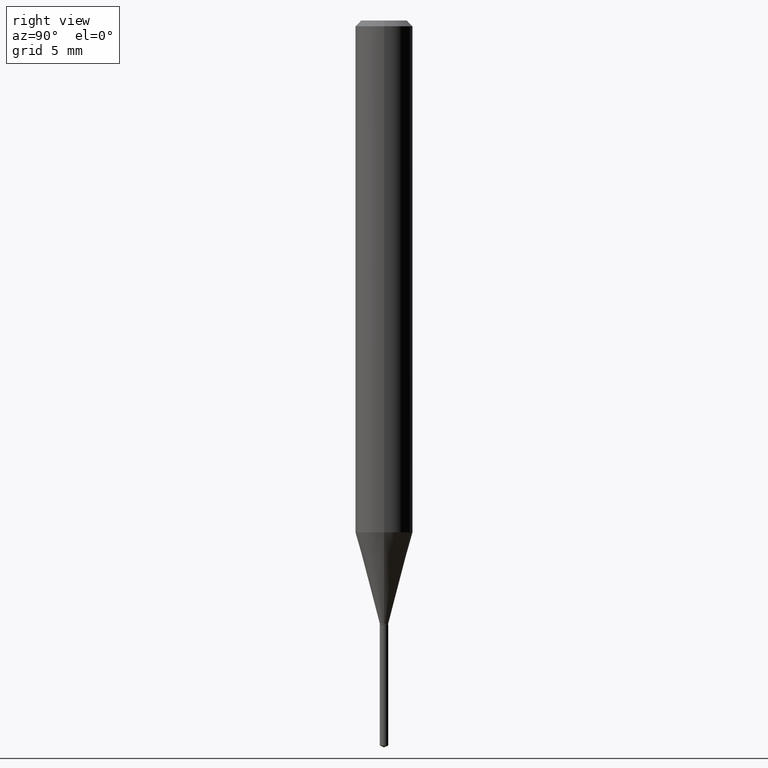
[diagram: clean part render]
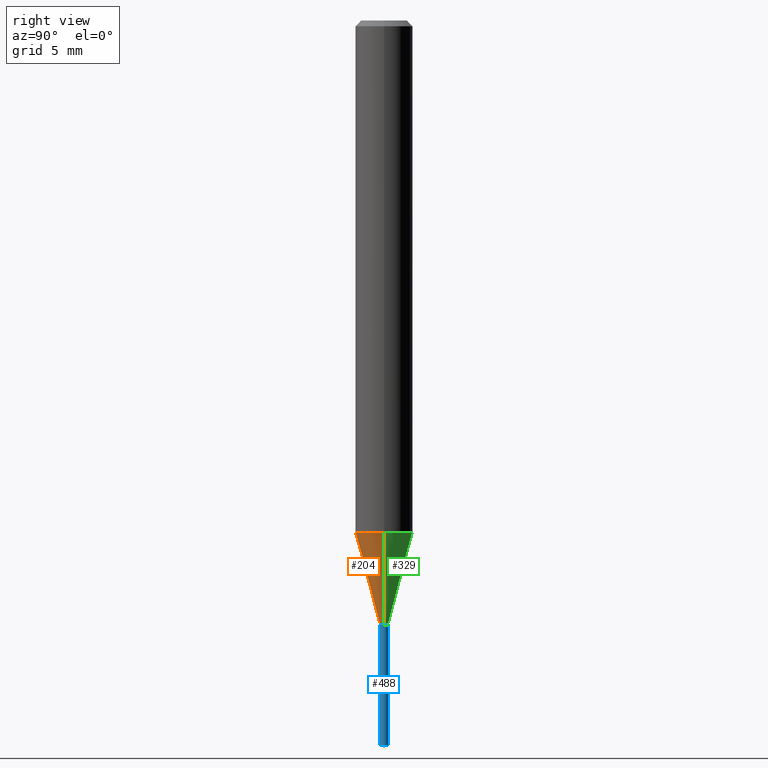
[diagram: same view with three faces highlighted in distinct colors, each labeled with its STEP entity id]
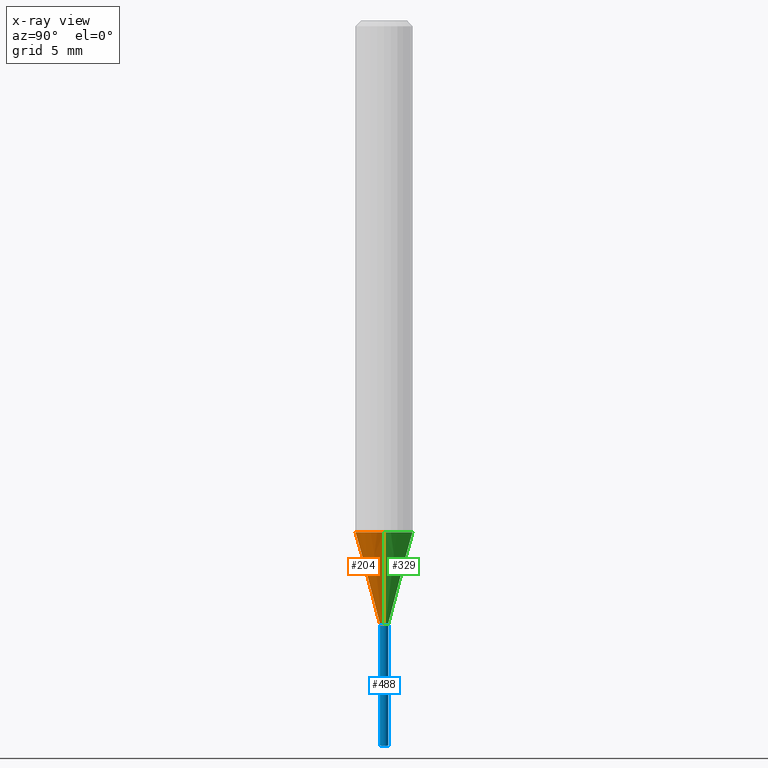
[diagram: x-ray of the same camera — body ghosted, the three highlighted faces saturated]
A machine part, right view with three faces highlighted in distinct colors.
The next image is the same camera in x-ray (body ghosted, the three faces saturated) — at least one of them is partly hidden behind the body in this view.
Their STEP definitions:

[orange] entity #204 — the highlighted conical surface has half-angle 15 deg.
#37 = DIRECTION ( 'NONE',  ( -0.2588190451025213501, 5.211531920934551042E-15, 0.9659258262890682012 ) ) ;
#38 = VERTEX_POINT ( 'NONE', #473 ) ;
#41 = EDGE_LOOP ( 'NONE', ( #141, #160, #205, #387 ) ) ;
#67 = DIRECTION ( 'NONE',  ( -2.445468806185136597E-29, 3.491481338843145583E-15, 1.000000000000000000 ) ) ;
#86 = CONICAL_SURFACE ( 'NONE', #259, 0.008649999999999999703, 0.2617993877991500740 ) ;
#106 = AXIS2_PLACEMENT_3D ( 'NONE', #207, #354, #318 ) ;
#110 = DIRECTION ( 'NONE',  ( -2.445468806185136597E-29, 3.491481338843145583E-15, 1.000000000000000000 ) ) ;
#118 = CARTESIAN_POINT ( 'NONE',  ( -0.05905000000000013016, -3.258367154895266735E-15, -1.053404639298528345 ) ) ;
#126 = LINE ( 'NONE', #275, #314 ) ;
#139 = VERTEX_POINT ( 'NONE', #260 ) ;
#141 = ORIENTED_EDGE ( 'NONE', *, *, #340, .F. ) ;
#155 = EDGE_CURVE ( 'NONE', #139, #38, #292, .T. ) ;
#160 = ORIENTED_EDGE ( 'NONE', *, *, #155, .T. ) ;
#172 = VERTEX_POINT ( 'NONE', #118 ) ;
#203 = DIRECTION ( 'NONE',  ( 0.2588190451025213501, 1.565188264969621968E-15, 0.9659258262890682012 ) ) ;
#204 = ADVANCED_FACE ( 'NONE', ( #408 ), #86, .T. ) ;
#205 = ORIENTED_EDGE ( 'NONE', *, *, #415, .T. ) ;
#207 = CARTESIAN_POINT ( 'NONE',  ( 2.576068185695256609E-29, -3.677942640361607017E-15, -1.053404639298528345 ) ) ;
#222 = DIRECTION ( 'NONE',  ( 1.000000000000000000, -6.982962677686226479E-15, 0.000000000000000000 ) ) ;
#236 = AXIS2_PLACEMENT_3D ( 'NONE', #441, #67, #222 ) ;
#245 = CARTESIAN_POINT ( 'NONE',  ( 0.05905000000000013016, -4.090286586478981149E-15, -1.053404639298528345 ) ) ;
#259 = AXIS2_PLACEMENT_3D ( 'NONE', #440, #110, #299 ) ;
#260 = CARTESIAN_POINT ( 'NONE',  ( -0.008649999999999999703, -4.276878190936301888E-15, -1.241499999999999826 ) ) ;
#275 = CARTESIAN_POINT ( 'NONE',  ( 0.008649999999999999703, -4.395076709335750145E-15, -1.241499999999999826 ) ) ;
#292 = CIRCLE ( 'NONE', #236, 0.008649999999999999703 ) ;
#299 = DIRECTION ( 'NONE',  ( 1.000000000000000000, -6.982962677686226479E-15, 0.000000000000000000 ) ) ;
#314 = VECTOR ( 'NONE', #203, 39.37007874015747433 ) ;
#318 = DIRECTION ( 'NONE',  ( 1.000000000000000000, -6.982962677686265133E-15, 0.000000000000000000 ) ) ;
#338 = LINE ( 'NONE', #375, #490 ) ;
#340 = EDGE_CURVE ( 'NONE', #139, #172, #338, .T. ) ;
#354 = DIRECTION ( 'NONE',  ( -2.445468806185136597E-29, 3.491481338843145583E-15, 1.000000000000000000 ) ) ;
#361 = VERTEX_POINT ( 'NONE', #245 ) ;
#375 = CARTESIAN_POINT ( 'NONE',  ( -0.008649999999999999703, -4.273212135530516336E-15, -1.241499999999999826 ) ) ;
#387 = ORIENTED_EDGE ( 'NONE', *, *, #454, .F. ) ;
#408 = FACE_OUTER_BOUND ( 'NONE', #41, .T. ) ;
#415 = EDGE_CURVE ( 'NONE', #38, #361, #126, .T. ) ;
#440 = CARTESIAN_POINT ( 'NONE',  ( 3.036049522878846484E-29, -4.334674082173764544E-15, -1.241499999999999826 ) ) ;
#441 = CARTESIAN_POINT ( 'NONE',  ( 3.036049522878846484E-29, -4.334674082173764544E-15, -1.241499999999999826 ) ) ;
#454 = EDGE_CURVE ( 'NONE', #172, #361, #478, .T. ) ;
#473 = CARTESIAN_POINT ( 'NONE',  ( 0.008649999999999999703, -4.395076709335750145E-15, -1.241499999999999826 ) ) ;
#478 = CIRCLE ( 'NONE', #106, 0.05905000000000013016 ) ;
#490 = VECTOR ( 'NONE', #37, 39.37007874015747433 ) ;

[blue] entity #488 — the highlighted cylindrical surface (edge-blend (fillet) strip) has radius 0.2197 mm, axis along (-0, 0, 1).
#7 = EDGE_CURVE ( 'NONE', #167, #90, #198, .T. ) ;
#29 = EDGE_CURVE ( 'NONE', #230, #90, #288, .T. ) ;
#31 = CARTESIAN_POINT ( 'NONE',  ( -6.040262716195577240E-17, -0.008650000000004345185, -1.244099999999999984 ) ) ;
#44 = DIRECTION ( 'NONE',  ( -6.982962677686265133E-15, -1.000000000000000000, 0.000000000000000000 ) ) ;
#58 = ORIENTED_EDGE ( 'NONE', *, *, #7, .F. ) ;
#74 = CARTESIAN_POINT ( 'NONE',  ( 6.146194664328519809E-17, 0.008649999999995657690, -1.244099999999999984 ) ) ;
#81 = CYLINDRICAL_SURFACE ( 'NONE', #403, 0.008649999999999999703 ) ;
#85 = DIRECTION ( 'NONE',  ( -6.982962677686265133E-15, -1.000000000000000000, 0.000000000000000000 ) ) ;
#89 = CARTESIAN_POINT ( 'NONE',  ( 3.648798017825315625E-29, -5.209527733608836381E-15, -1.492066438756959101 ) ) ;
#90 = VERTEX_POINT ( 'NONE', #74 ) ;
#107 = CARTESIAN_POINT ( 'NONE',  ( 6.146194664327908442E-17, 0.008649999999995655955, -1.244099999999999984 ) ) ;
#109 = CARTESIAN_POINT ( 'NONE',  ( -6.040262716194970803E-17, -0.008650000000005209078, -1.492066438756959101 ) ) ;
#136 = CARTESIAN_POINT ( 'NONE',  ( 3.042407741774928155E-29, -4.343751933654757151E-15, -1.244099999999999984 ) ) ;
#167 = VERTEX_POINT ( 'NONE', #31 ) ;
#170 = ORIENTED_EDGE ( 'NONE', *, *, #285, .F. ) ;
#175 = AXIS2_PLACEMENT_3D ( 'NONE', #89, #201, #85 ) ;
#178 = DIRECTION ( 'NONE',  ( -6.982962677686265133E-15, -1.000000000000000000, 0.000000000000000000 ) ) ;
#197 = VERTEX_POINT ( 'NONE', #109 ) ;
#198 = CIRCLE ( 'NONE', #459, 0.008649999999999999703 ) ;
#201 = DIRECTION ( 'NONE',  ( -2.445453018118844559E-29, 3.491503948252676758E-15, 1.000000000000000000 ) ) ;
#209 = ORIENTED_EDGE ( 'NONE', *, *, #29, .T. ) ;
#210 = DIRECTION ( 'NONE',  ( -2.445453018118844559E-29, 3.491503948252676758E-15, 1.000000000000000000 ) ) ;
#230 = VERTEX_POINT ( 'NONE', #404 ) ;
#231 = CARTESIAN_POINT ( 'NONE',  ( -6.040262716195577240E-17, -0.008650000000004345185, -1.244099999999999984 ) ) ;
#234 = DIRECTION ( 'NONE',  ( -2.445453018118844559E-29, 3.491503948252676758E-15, 1.000000000000000000 ) ) ;
#285 = EDGE_CURVE ( 'NONE', #197, #167, #405, .T. ) ;
#288 = LINE ( 'NONE', #107, #468 ) ;
#346 = ORIENTED_EDGE ( 'NONE', *, *, #368, .T. ) ;
#368 = EDGE_CURVE ( 'NONE', #197, #230, #436, .T. ) ;
#377 = CARTESIAN_POINT ( 'NONE',  ( 3.042407741774928155E-29, -4.343751933654757151E-15, -1.244099999999999984 ) ) ;
#388 = VECTOR ( 'NONE', #449, 39.37007874015748143 ) ;
#398 = DIRECTION ( 'NONE',  ( -2.445453018118844278E-29, 3.491503948252676363E-15, 1.000000000000000000 ) ) ;
#403 = AXIS2_PLACEMENT_3D ( 'NONE', #377, #234, #44 ) ;
#404 = CARTESIAN_POINT ( 'NONE',  ( 6.146194664328513646E-17, 0.008649999999994788594, -1.492066438756959101 ) ) ;
#405 = LINE ( 'NONE', #231, #388 ) ;
#413 = FACE_OUTER_BOUND ( 'NONE', #487, .T. ) ;
#436 = CIRCLE ( 'NONE', #175, 0.008649999999999999703 ) ;
#449 = DIRECTION ( 'NONE',  ( -2.445453018118844278E-29, 3.491503948252676363E-15, 1.000000000000000000 ) ) ;
#459 = AXIS2_PLACEMENT_3D ( 'NONE', #136, #210, #178 ) ;
#468 = VECTOR ( 'NONE', #398, 39.37007874015748143 ) ;
#487 = EDGE_LOOP ( 'NONE', ( #346, #209, #58, #170 ) ) ;
#488 = ADVANCED_FACE ( 'NONE', ( #413 ), #81, .T. ) ;

[green] entity #329 — the highlighted conical surface has half-angle 15 deg.
#14 = ORIENTED_EDGE ( 'NONE', *, *, #340, .T. ) ;
#27 = CONICAL_SURFACE ( 'NONE', #115, 0.008649999999999999703, 0.2617993877991500740 ) ;
#37 = DIRECTION ( 'NONE',  ( -0.2588190451025213501, 5.211531920934551042E-15, 0.9659258262890682012 ) ) ;
#38 = VERTEX_POINT ( 'NONE', #473 ) ;
#40 = CARTESIAN_POINT ( 'NONE',  ( 2.576068185695256609E-29, -3.677942640361607017E-15, -1.053404639298528345 ) ) ;
#112 = FACE_OUTER_BOUND ( 'NONE', #130, .T. ) ;
#115 = AXIS2_PLACEMENT_3D ( 'NONE', #188, #152, #263 ) ;
#118 = CARTESIAN_POINT ( 'NONE',  ( -0.05905000000000013016, -3.258367154895266735E-15, -1.053404639298528345 ) ) ;
#126 = LINE ( 'NONE', #275, #314 ) ;
#130 = EDGE_LOOP ( 'NONE', ( #238, #14, #463, #313 ) ) ;
#139 = VERTEX_POINT ( 'NONE', #260 ) ;
#152 = DIRECTION ( 'NONE',  ( -2.445468806185136597E-29, 3.491481338843145583E-15, 1.000000000000000000 ) ) ;
#172 = VERTEX_POINT ( 'NONE', #118 ) ;
#188 = CARTESIAN_POINT ( 'NONE',  ( 3.036049522878846484E-29, -4.334674082173764544E-15, -1.241499999999999826 ) ) ;
#196 = DIRECTION ( 'NONE',  ( 1.000000000000000000, -6.982962677686265133E-15, 0.000000000000000000 ) ) ;
#203 = DIRECTION ( 'NONE',  ( 0.2588190451025213501, 1.565188264969621968E-15, 0.9659258262890682012 ) ) ;
#221 = AXIS2_PLACEMENT_3D ( 'NONE', #40, #273, #196 ) ;
#238 = ORIENTED_EDGE ( 'NONE', *, *, #270, .T. ) ;
#245 = CARTESIAN_POINT ( 'NONE',  ( 0.05905000000000013016, -4.090286586478981149E-15, -1.053404639298528345 ) ) ;
#252 = CIRCLE ( 'NONE', #351, 0.008649999999999999703 ) ;
#260 = CARTESIAN_POINT ( 'NONE',  ( -0.008649999999999999703, -4.276878190936301888E-15, -1.241499999999999826 ) ) ;
#263 = DIRECTION ( 'NONE',  ( 1.000000000000000000, -6.982962677686226479E-15, 0.000000000000000000 ) ) ;
#270 = EDGE_CURVE ( 'NONE', #38, #139, #252, .T. ) ;
#273 = DIRECTION ( 'NONE',  ( -2.445468806185136597E-29, 3.491481338843145583E-15, 1.000000000000000000 ) ) ;
#275 = CARTESIAN_POINT ( 'NONE',  ( 0.008649999999999999703, -4.395076709335750145E-15, -1.241499999999999826 ) ) ;
#296 = DIRECTION ( 'NONE',  ( 1.000000000000000000, -6.982962677686226479E-15, 0.000000000000000000 ) ) ;
#301 = DIRECTION ( 'NONE',  ( -2.445468806185136597E-29, 3.491481338843145583E-15, 1.000000000000000000 ) ) ;
#313 = ORIENTED_EDGE ( 'NONE', *, *, #415, .F. ) ;
#314 = VECTOR ( 'NONE', #203, 39.37007874015747433 ) ;
#329 = ADVANCED_FACE ( 'NONE', ( #112 ), #27, .T. ) ;
#338 = LINE ( 'NONE', #375, #490 ) ;
#340 = EDGE_CURVE ( 'NONE', #139, #172, #338, .T. ) ;
#351 = AXIS2_PLACEMENT_3D ( 'NONE', #450, #301, #296 ) ;
#361 = VERTEX_POINT ( 'NONE', #245 ) ;
#375 = CARTESIAN_POINT ( 'NONE',  ( -0.008649999999999999703, -4.273212135530516336E-15, -1.241499999999999826 ) ) ;
#415 = EDGE_CURVE ( 'NONE', #38, #361, #126, .T. ) ;
#428 = CIRCLE ( 'NONE', #221, 0.05905000000000013016 ) ;
#450 = CARTESIAN_POINT ( 'NONE',  ( 3.036049522878846484E-29, -4.334674082173764544E-15, -1.241499999999999826 ) ) ;
#463 = ORIENTED_EDGE ( 'NONE', *, *, #486, .F. ) ;
#473 = CARTESIAN_POINT ( 'NONE',  ( 0.008649999999999999703, -4.395076709335750145E-15, -1.241499999999999826 ) ) ;
#486 = EDGE_CURVE ( 'NONE', #361, #172, #428, .T. ) ;
#490 = VECTOR ( 'NONE', #37, 39.37007874015747433 ) ;